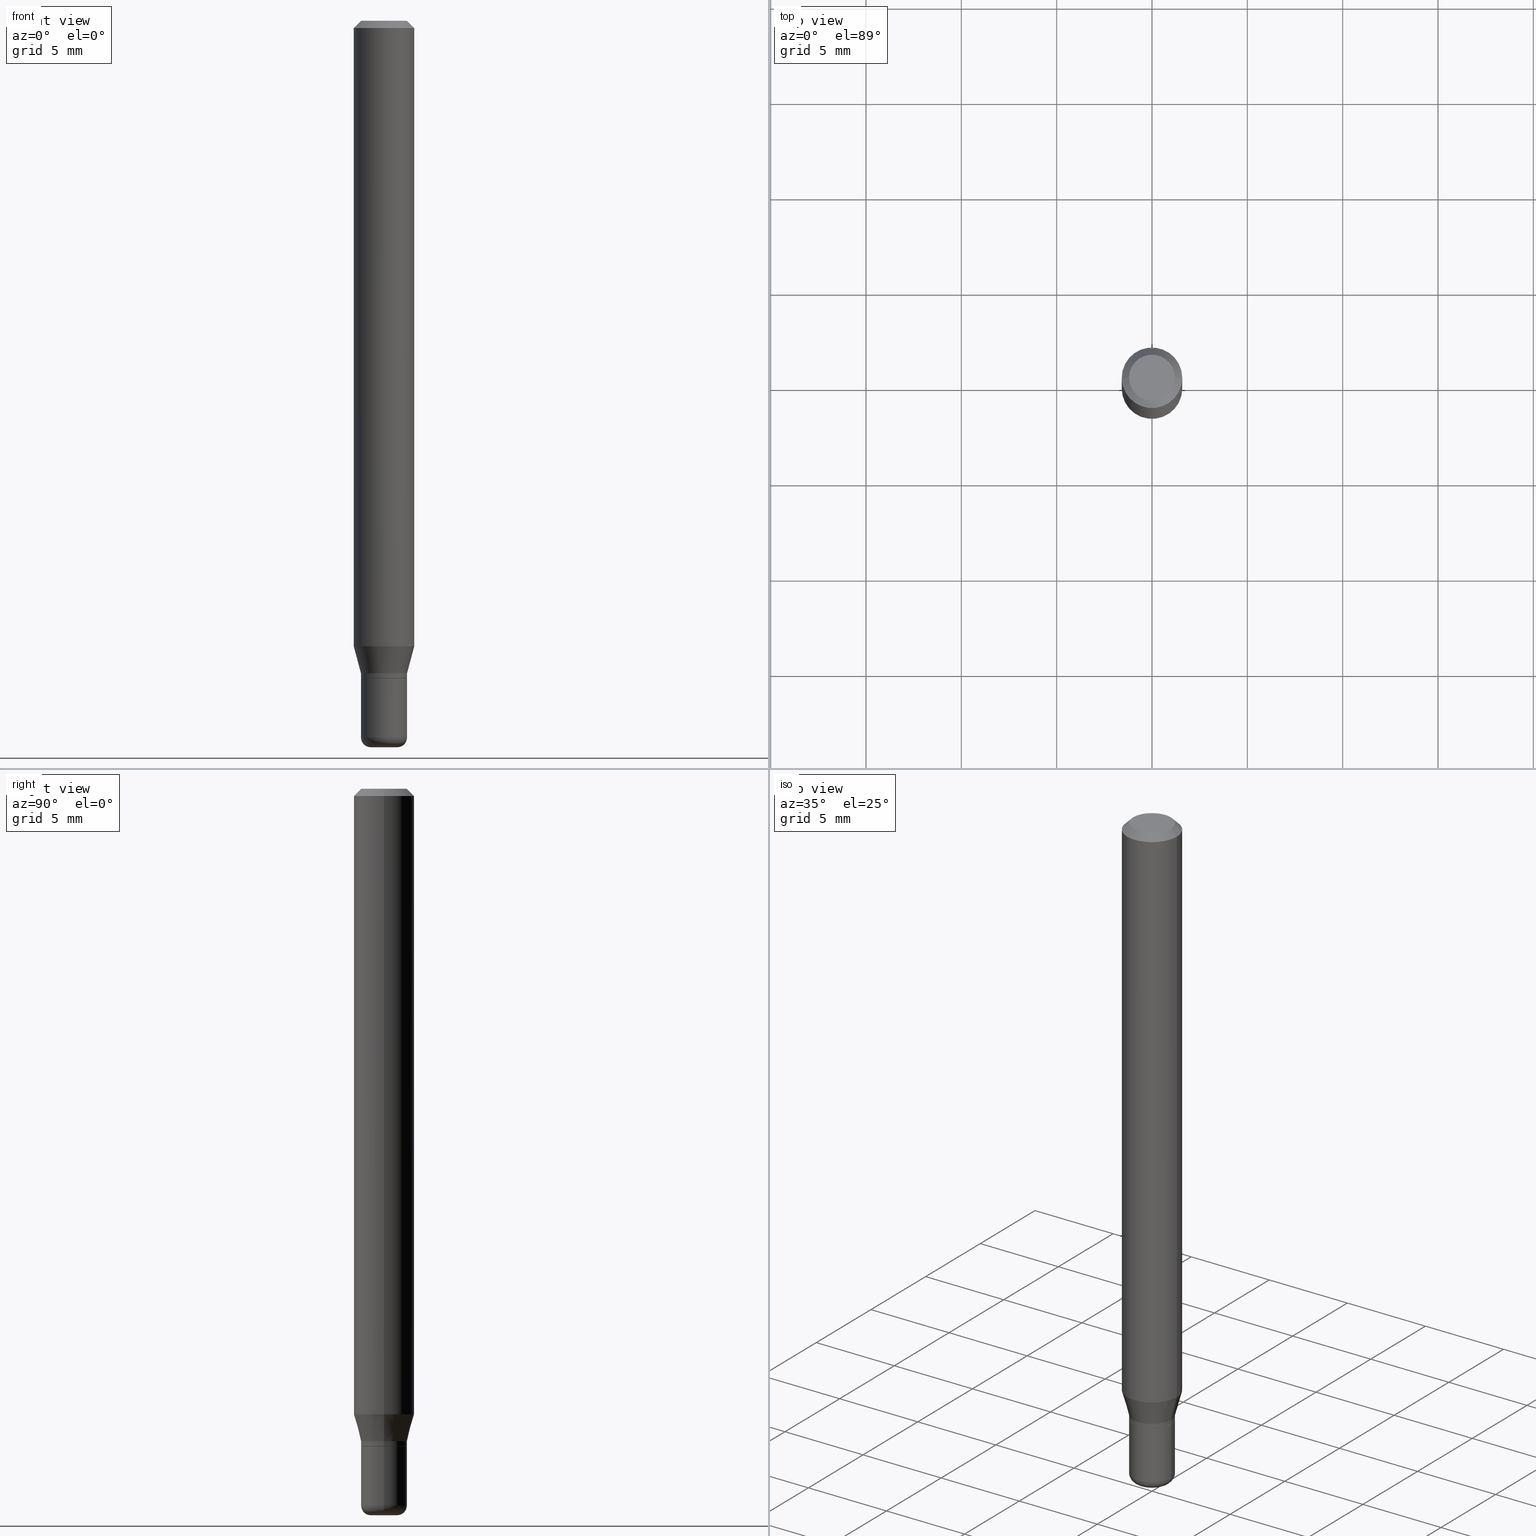
[diagram: canonical four-view strip — front | top / right | iso, engineering-drawing reading convention]
A machine part, canonical four-view strip (front | top / right | iso — engineering-drawing reading convention). The complete STEP part file that produces these views, byte-faithful:
ISO-10303-21;
HEADER;
FILE_DESCRIPTION (( 'STEP AP203' ),
    '1' );
FILE_NAME ('08589.STEP',
    '2024-02-29T19:53:49',
    ( '' ),
    ( '' ),
    'SwSTEP 2.0',
    'SolidWorks 2023',
    '' );
FILE_SCHEMA (( 'CONFIG_CONTROL_DESIGN' ));
ENDSEC;

DATA;
#1 = LINE ( 'NONE', #317, #270 ) ;
#2 = ORIENTED_EDGE ( 'NONE', *, *, #444, .T. ) ;
#3 = APPROVAL ( #509, 'UNSPECIFIED' ) ;
#4 = DIRECTION ( 'NONE',  ( -2.445468806185136597E-29, 3.491481338843145583E-15, 1.000000000000000000 ) ) ;
#5 = VECTOR ( 'NONE', #274, 39.37007874015748143 ) ;
#6 = ORIENTED_EDGE ( 'NONE', *, *, #197, .F. ) ;
#7 = VECTOR ( 'NONE', #117, 39.37007874015748143 ) ;
#8 = DIRECTION ( 'NONE',  ( 1.000000000000000000, -6.982962677686266711E-15, 4.876176775795935793E-29 ) ) ;
#9 = ORIENTED_EDGE ( 'NONE', *, *, #35, .T. ) ;
#10 = EDGE_CURVE ( 'NONE', #481, #125, #463, .T. ) ;
#11 = DIRECTION ( 'NONE',  ( 2.445468806185136597E-29, -3.491481338843145583E-15, -1.000000000000000000 ) ) ;
#12 = PLANE ( 'NONE',  #63 ) ;
#13 =( NAMED_UNIT ( * ) PLANE_ANGLE_UNIT ( ) SI_UNIT ( $, .RADIAN. ) );
#14 = CC_DESIGN_PERSON_AND_ORGANIZATION_ASSIGNMENT ( #37, #187, ( #78 ) ) ;
#15 = FACE_OUTER_BOUND ( 'NONE', #286, .T. ) ;
#16 = ORIENTED_EDGE ( 'NONE', *, *, #379, .F. ) ;
#17 = CLOSED_SHELL ( 'NONE', ( #110, #352, #105, #396, #86, #448 ) ) ;
#18 = VERTEX_POINT ( 'NONE', #220 ) ;
#19 = VECTOR ( 'NONE', #196, 39.37007874015748143 ) ;
#20 = CARTESIAN_POINT ( 'NONE',  ( 3.668203209277632395E-31, -5.237222008264614861E-17, -0.01499999999999970281 ) ) ;
#21 = CARTESIAN_POINT ( 'NONE',  ( -0.04750000000000000749, 3.578768372314221353E-16, 2.731847993664239060E-16 ) ) ;
#22 = EDGE_CURVE ( 'NONE', #45, #445, #341, .T. ) ;
#23 = EDGE_CURVE ( 'NONE', #67, #298, #418, .T. ) ;
#24 = PERSON_AND_ORGANIZATION ( #31, #309 ) ;
#25 = ORIENTED_EDGE ( 'NONE', *, *, #23, .F. ) ;
#26 = AXIS2_PLACEMENT_3D ( 'NONE', #231, #393, #430 ) ;
#27 = AXIS2_PLACEMENT_3D ( 'NONE', #355, #517, #126 ) ;
#28 = CARTESIAN_POINT ( 'NONE',  ( -0.06250000000000000000, -1.836754559110020621E-15, -0.01499999999999970281 ) ) ;
#29 = DATE_AND_TIME ( #118, #465 ) ;
#30 = AXIS2_PLACEMENT_3D ( 'NONE', #114, #510, #473 ) ;
#31 = PERSON ( 'UNSPECIFIED', 'UNSPECIFIED', 'UNSPECIFIED', ('UNSPECIFIED'), ('UNSPECIFIED'), ('UNSPECIFIED') ) ;
#32 = CIRCLE ( 'NONE', #134, 0.06250000000000000000 ) ;
#33 = COORDINATED_UNIVERSAL_TIME_OFFSET ( 5, 0, .BEHIND. ) ;
#34 = ORIENTED_EDGE ( 'NONE', *, *, #253, .F. ) ;
#35 = EDGE_CURVE ( 'NONE', #481, #65, #482, .T. ) ;
#36 = ORIENTED_EDGE ( 'NONE', *, *, #10, .F. ) ;
#37 = PERSON_AND_ORGANIZATION ( #31, #309 ) ;
#38 = DIRECTION ( 'NONE',  ( -2.445468806185136597E-29, 3.491481338843145583E-15, 1.000000000000000000 ) ) ;
#39 = DIRECTION ( 'NONE',  ( -2.445468806185136597E-29, 3.491481338843145583E-15, 1.000000000000000000 ) ) ;
#40 = DIRECTION ( 'NONE',  ( 1.000000000000000000, -6.982962677686262766E-15, 0.000000000000000000 ) ) ;
#41 = CIRCLE ( 'NONE', #496, 0.04750000000000000749 ) ;
#42 = DIRECTION ( 'NONE',  ( -2.445468806185136597E-29, 3.491481338843145583E-15, 1.000000000000000000 ) ) ;
#43 = CARTESIAN_POINT ( 'NONE',  ( 3.158370008839356445E-29, -4.509315317837521367E-15, -1.291519237886467275 ) ) ;
#44 = DIRECTION ( 'NONE',  ( -2.445468806185136877E-29, 3.491481338843145188E-15, 1.000000000000000000 ) ) ;
#45 = VERTEX_POINT ( 'NONE', #450 ) ;
#46 = CYLINDRICAL_SURFACE ( 'NONE', #435, 0.04750000000000001443 ) ;
#47 = CARTESIAN_POINT ( 'NONE',  ( 0.04700000000000000705, -5.067885163330825231E-15, -1.357500000000000151 ) ) ;
#48 = ORIENTED_EDGE ( 'NONE', *, *, #377, .T. ) ;
#49 = AXIS2_PLACEMENT_3D ( 'NONE', #20, #11, #322 ) ;
#50 = FACE_OUTER_BOUND ( 'NONE', #237, .T. ) ;
#51 = DIRECTION ( 'NONE',  ( -2.445468806185136597E-29, 3.491481338843145583E-15, 1.000000000000000000 ) ) ;
#52 = ORIENTED_EDGE ( 'NONE', *, *, #367, .F. ) ;
#53 = DIRECTION ( 'NONE',  ( -2.445468806185136877E-29, 3.491481338843145188E-15, 1.000000000000000000 ) ) ;
#54 = CARTESIAN_POINT ( 'NONE',  ( 0.04750000000000000749, -4.035134999187568762E-16, 2.731847993664288856E-16 ) ) ;
#55 = DIRECTION ( 'NONE',  ( -2.445468806185136597E-29, 3.491481338843145583E-15, 1.000000000000000000 ) ) ;
#56 = DIRECTION ( 'NONE',  ( 1.000000000000000000, 0.000000000000000000, 0.000000000000000000 ) ) ;
#57 = AXIS2_PLACEMENT_3D ( 'NONE', #297, #373, #61 ) ;
#58 = CIRCLE ( 'NONE', #162, 0.06250000000000000000 ) ;
#59 = EDGE_CURVE ( 'NONE', #45, #176, #462, .T. ) ;
#60 = PERSON_AND_ORGANIZATION ( #31, #309 ) ;
#61 = DIRECTION ( 'NONE',  ( 1.000000000000000000, -6.982962677686269866E-15, 0.000000000000000000 ) ) ;
#62 = VERTEX_POINT ( 'NONE', #205 ) ;
#63 = AXIS2_PLACEMENT_3D ( 'NONE', #321, #166, #405 ) ;
#64 = ADVANCED_FACE ( 'NONE', ( #15 ), #411, .T. ) ;
#65 = VERTEX_POINT ( 'NONE', #21 ) ;
#66 = COORDINATED_UNIVERSAL_TIME_OFFSET ( 5, 0, .BEHIND. ) ;
#67 = VERTEX_POINT ( 'NONE', #376 ) ;
#68 = VERTEX_POINT ( 'NONE', #28 ) ;
#69 = VECTOR ( 'NONE', #492, 39.37007874015748143 ) ;
#70 = LOCAL_TIME ( 14, 53, 49.00000000000000000, #183 ) ;
#71 = CARTESIAN_POINT ( 'NONE',  ( 3.319723904396323737E-29, -4.739685917479570727E-15, -1.357500000000000151 ) ) ;
#72 = DIRECTION ( 'NONE',  ( -2.438088387897960049E-29, 3.491481338843145188E-15, 1.000000000000000000 ) ) ;
#73 = DIRECTION ( 'NONE',  ( -2.445468806185136597E-29, 3.491481338843145583E-15, 1.000000000000000000 ) ) ;
#74 = APPROVAL_STATUS ( 'not_yet_approved' ) ;
#75 = DIRECTION ( 'NONE',  ( 1.000000000000000000, -6.982962677686275388E-15, 0.000000000000000000 ) ) ;
#76 = CARTESIAN_POINT ( 'NONE',  ( 3.158370008839356445E-29, -4.509315317837521367E-15, -1.291519237886467275 ) ) ;
#77 = FACE_OUTER_BOUND ( 'NONE', #456, .T. ) ;
#78 = PRODUCT_DEFINITION_FORMATION_WITH_SPECIFIED_SOURCE ( 'ANY', '', #387, .NOT_KNOWN. ) ;
#79 = DIRECTION ( 'NONE',  ( 1.000000000000000000, -6.982962677686266711E-15, 4.876176775795934672E-29 ) ) ;
#80 = DIRECTION ( 'NONE',  ( -2.445468806185136597E-29, 3.491481338843145583E-15, 1.000000000000000000 ) ) ;
#81 = ORIENTED_EDGE ( 'NONE', *, *, #189, .F. ) ;
#82 = CARTESIAN_POINT ( 'NONE',  ( 0.04749999999999999362, -5.071376644669668238E-15, -1.357500000000000151 ) ) ;
#83 = ORIENTED_EDGE ( 'NONE', *, *, #380, .F. ) ;
#84 = CARTESIAN_POINT ( 'NONE',  ( -0.04750000000000000749, -4.400432377324100941E-15, -1.356999999999999984 ) ) ;
#85 = ADVANCED_FACE ( 'NONE', ( #263 ), #104, .T. ) ;
#86 = ADVANCED_FACE ( 'NONE', ( #382 ), #233, .T. ) ;
#87 = DIRECTION ( 'NONE',  ( -2.438088387897960049E-29, 3.491481338843145188E-15, 1.000000000000000000 ) ) ;
#88 = ORIENTED_EDGE ( 'NONE', *, *, #326, .F. ) ;
#89 = APPROVAL_PERSON_ORGANIZATION ( #60, #424, #177 ) ;
#90 = ORIENTED_EDGE ( 'NONE', *, *, #356, .T. ) ;
#91 = DIRECTION ( 'NONE',  ( 7.105427357601001859E-15, 1.000000000000000000, -3.491481338843145583E-15 ) ) ;
#92 = APPLICATION_CONTEXT ( 'configuration controlled 3d designs of mechanical parts and assemblies' ) ;
#93 = PLANE ( 'NONE',  #502 ) ;
#94 = VERTEX_POINT ( 'NONE', #302 ) ;
#95 = DIRECTION ( 'NONE',  ( -1.000000000000000000, 6.982962677686265922E-15, -4.876176775795935793E-29 ) ) ;
#96 = APPLICATION_PROTOCOL_DEFINITION ( 'international standard', 'config_control_design', 1994, #251 ) ;
#97 = ADVANCED_FACE ( 'NONE', ( #421 ), #501, .F. ) ;
#98 = AXIS2_PLACEMENT_3D ( 'NONE', #290, #55, #209 ) ;
#99 = DIRECTION ( 'NONE',  ( -2.445468806185136597E-29, 3.491481338843145583E-15, 1.000000000000000000 ) ) ;
#100 = EDGE_LOOP ( 'NONE', ( #265, #160, #52, #419 ) ) ;
#101 = DIRECTION ( 'NONE',  ( 1.000000000000000000, -6.982962677686266711E-15, 4.852736867747365086E-29 ) ) ;
#102 = VERTEX_POINT ( 'NONE', #175 ) ;
#103 = PRODUCT_DEFINITION ( 'UNKNOWN', '', #78, #476 ) ;
#104 = CYLINDRICAL_SURFACE ( 'NONE', #161, 0.04750000000000001443 ) ;
#105 = ADVANCED_FACE ( 'NONE', ( #294 ), #12, .F. ) ;
#106 = CIRCLE ( 'NONE', #412, 0.04750000000000000749 ) ;
#107 = DIRECTION ( 'NONE',  ( 1.000000000000000000, -6.982962677686258033E-15, 4.883557194083110098E-29 ) ) ;
#108 = ORIENTED_EDGE ( 'NONE', *, *, #59, .T. ) ;
#109 = VERTEX_POINT ( 'NONE', #132 ) ;
#110 = ADVANCED_FACE ( 'NONE', ( #50 ), #512, .T. ) ;
#111 = PERSON_AND_ORGANIZATION ( #31, #309 ) ;
#112 = EDGE_LOOP ( 'NONE', ( #459, #223, #304, #16 ) ) ;
#113 = LINE ( 'NONE', #228, #246 ) ;
#114 = CARTESIAN_POINT ( 'NONE',  ( 3.668203209277632395E-31, -5.237222008264614861E-17, -0.01499999999999970281 ) ) ;
#115 = CARTESIAN_POINT ( 'NONE',  ( 3.295269216334471631E-29, -4.704771104091139078E-15, -1.347500000000000142 ) ) ;
#116 = VERTEX_POINT ( 'NONE', #287 ) ;
#117 = DIRECTION ( 'NONE',  ( -0.2588190451025216277, 5.211531920934551831E-15, 0.9659258262890679791 ) ) ;
#118 = CALENDAR_DATE ( 2024, 29, 2 ) ;
#119 = CYLINDRICAL_SURFACE ( 'NONE', #182, 0.04750000000000000749 ) ;
#120 = CARTESIAN_POINT ( 'NONE',  ( 3.319723904396323737E-29, -4.739685917479570727E-15, -1.357500000000000151 ) ) ;
#121 = CONICAL_SURFACE ( 'NONE', #334, 0.04750000000000002137, 0.2617993877991502960 ) ;
#122 = DIRECTION ( 'NONE',  ( -0.7071067811865479058, 2.468850131082261005E-15, -0.7071067811865471286 ) ) ;
#123 = SECURITY_CLASSIFICATION ( '', '', #214 ) ;
#124 = FACE_OUTER_BOUND ( 'NONE', #416, .T. ) ;
#125 = VERTEX_POINT ( 'NONE', #446 ) ;
#126 = DIRECTION ( 'NONE',  ( 1.000000000000000000, -6.982962677686269866E-15, 0.000000000000000000 ) ) ;
#127 = ORIENTED_EDGE ( 'NONE', *, *, #227, .F. ) ;
#128 = EDGE_CURVE ( 'NONE', #400, #94, #495, .T. ) ;
#129 = CARTESIAN_POINT ( 'NONE',  ( 3.619293833154002365E-29, -5.167392381487854879E-15, -1.479999999999999982 ) ) ;
#130 = EDGE_CURVE ( 'NONE', #366, #298, #408, .T. ) ;
#131 = APPLICATION_PROTOCOL_DEFINITION ( 'international standard', 'config_control_design', 1994, #92 ) ;
#132 = CARTESIAN_POINT ( 'NONE',  ( 0.06250000000000000000, -4.945750485192912248E-15, -1.291519237886467275 ) ) ;
#133 = ORIENTED_EDGE ( 'NONE', *, *, #128, .T. ) ;
#134 = AXIS2_PLACEMENT_3D ( 'NONE', #43, #391, #40 ) ;
#135 = ORIENTED_EDGE ( 'NONE', *, *, #367, .T. ) ;
#136 = ADVANCED_FACE ( 'NONE', ( #390 ), #121, .T. ) ;
#137 = EDGE_CURVE ( 'NONE', #400, #249, #148, .T. ) ;
#138 =( NAMED_UNIT ( * ) SI_UNIT ( $, .STERADIAN. ) SOLID_ANGLE_UNIT ( ) );
#139 = CC_DESIGN_PERSON_AND_ORGANIZATION_ASSIGNMENT ( #111, #225, ( #123 ) ) ;
#140 = CARTESIAN_POINT ( 'NONE',  ( 3.668203209277704895E-29, -5.237222008264718177E-15, -1.500000000000000222 ) ) ;
#141 = CIRCLE ( 'NONE', #425, 0.04750000000000002137 ) ;
#142 = CC_DESIGN_APPROVAL ( #316, ( #78 ) ) ;
#143 = DATE_TIME_ROLE ( 'classification_date' ) ;
#144 = ADVANCED_FACE ( 'NONE', ( #77 ), #245, .T. ) ;
#145 = ORIENTED_EDGE ( 'NONE', *, *, #22, .T. ) ;
#146 = LINE ( 'NONE', #358, #470 ) ;
#147 = EDGE_LOOP ( 'NONE', ( #135, #403, #169, #260 ) ) ;
#148 = CIRCLE ( 'NONE', #193, 0.02750000000000000014 ) ;
#149 = ORIENTED_EDGE ( 'NONE', *, *, #508, .F. ) ;
#150 = CARTESIAN_POINT ( 'NONE',  ( 3.295269216334471631E-29, -4.704771104091139078E-15, -1.347500000000000142 ) ) ;
#151 = APPROVAL_ROLE ( '' ) ;
#152 = AXIS2_PLACEMENT_3D ( 'NONE', #458, #464, #107 ) ;
#153 = DIRECTION ( 'NONE',  ( 1.000000000000000000, -6.982962677686269866E-15, 0.000000000000000000 ) ) ;
#154 = AXIS2_PLACEMENT_3D ( 'NONE', #323, #404, #364 ) ;
#155 = DIRECTION ( 'NONE',  ( -2.445468806185136597E-29, 3.491481338843145583E-15, 1.000000000000000000 ) ) ;
#156 = ADVANCED_FACE ( 'NONE', ( #188 ), #254, .T. ) ;
#157 = DIRECTION ( 'NONE',  ( 1.000000000000000000, -6.982962677686258033E-15, 0.000000000000000000 ) ) ;
#158 = FACE_OUTER_BOUND ( 'NONE', #259, .T. ) ;
#159 = DIRECTION ( 'NONE',  ( 1.000000000000000000, -6.982962677686262766E-15, 0.000000000000000000 ) ) ;
#160 = ORIENTED_EDGE ( 'NONE', *, *, #384, .T. ) ;
#161 = AXIS2_PLACEMENT_3D ( 'NONE', #338, #460, #340 ) ;
#162 = AXIS2_PLACEMENT_3D ( 'NONE', #282, #480, #357 ) ;
#163 = DIRECTION ( 'NONE',  ( 1.000000000000000000, -6.982962677686265922E-15, 4.876176775795935793E-29 ) ) ;
#164 = EDGE_CURVE ( 'NONE', #249, #366, #280, .T. ) ;
#165 = ORIENTED_EDGE ( 'NONE', *, *, #164, .F. ) ;
#166 = DIRECTION ( 'NONE',  ( 2.438088387897960049E-29, -3.491481338843145188E-15, -1.000000000000000000 ) ) ;
#167 = DIRECTION ( 'NONE',  ( 2.438088387897960049E-29, -3.491481338843145188E-15, -1.000000000000000000 ) ) ;
#168 = CARTESIAN_POINT ( 'NONE',  ( -0.06250000000000000000, 4.440892098500626162E-16, -3.074334431409316114E-30 ) ) ;
#169 = ORIENTED_EDGE ( 'NONE', *, *, #487, .F. ) ;
#170 = AXIS2_PLACEMENT_3D ( 'NONE', #248, #489, #101 ) ;
#171 = DIRECTION ( 'NONE',  ( 1.000000000000000000, -6.982962677686265922E-15, 4.876176775795935793E-29 ) ) ;
#172 =( GEOMETRIC_REPRESENTATION_CONTEXT ( 3 ) GLOBAL_UNCERTAINTY_ASSIGNED_CONTEXT ( ( #513 ) ) GLOBAL_UNIT_ASSIGNED_CONTEXT ( ( #204, #13, #138 ) ) REPRESENTATION_CONTEXT ( 'NONE', 'WORKASPACE' ) );
#173 = EDGE_LOOP ( 'NONE', ( #467, #337 ) ) ;
#174 = ADVANCED_BREP_SHAPE_REPRESENTATION ( '08589', ( #494, #327, #303 ), #172 ) ;
#175 = CARTESIAN_POINT ( 'NONE',  ( 0.04750000000000000749, -5.069630904000246734E-15, -1.356999999999999984 ) ) ;
#176 = VERTEX_POINT ( 'NONE', #349 ) ;
#177 = APPROVAL_ROLE ( '' ) ;
#178 = APPROVAL_DATE_TIME ( #423, #424 ) ;
#179 = VECTOR ( 'NONE', #461, 39.37007874015748143 ) ;
#180 = CIRCLE ( 'NONE', #154, 0.04750000000000002137 ) ;
#181 = ORIENTED_EDGE ( 'NONE', *, *, #363, .F. ) ;
#182 = AXIS2_PLACEMENT_3D ( 'NONE', #350, #155, #79 ) ;
#183 = COORDINATED_UNIVERSAL_TIME_OFFSET ( 5, 0, .BEHIND. ) ;
#184 = EDGE_LOOP ( 'NONE', ( #149, #505 ) ) ;
#185 = PERSON_AND_ORGANIZATION_ROLE ( 'creator' ) ;
#186 = ORIENTED_EDGE ( 'NONE', *, *, #415, .F. ) ;
#187 = PERSON_AND_ORGANIZATION_ROLE ( 'design_supplier' ) ;
#188 = FACE_OUTER_BOUND ( 'NONE', #374, .T. ) ;
#189 = EDGE_CURVE ( 'NONE', #102, #445, #295, .T. ) ;
#190 = CARTESIAN_POINT ( 'NONE',  ( 0.06250000000000000000, -4.364351673553916694E-16, 3.047610484872459871E-30 ) ) ;
#191 = CARTESIAN_POINT ( 'NONE',  ( 3.295269216334471631E-29, -4.704771104091139078E-15, -1.347500000000000142 ) ) ;
#192 = ORIENTED_EDGE ( 'NONE', *, *, #472, .T. ) ;
#193 = AXIS2_PLACEMENT_3D ( 'NONE', #311, #278, #433 ) ;
#194 = AXIS2_PLACEMENT_3D ( 'NONE', #477, #72, #163 ) ;
#195 = DIRECTION ( 'NONE',  ( 1.000000000000000000, -6.982962677686260400E-15, 0.000000000000000000 ) ) ;
#196 = DIRECTION ( 'NONE',  ( -2.445468806185136877E-29, 3.491481338843145188E-15, 1.000000000000000000 ) ) ;
#197 = EDGE_CURVE ( 'NONE', #116, #62, #141, .T. ) ;
#198 = DIRECTION ( 'NONE',  ( 1.000000000000000000, -6.982962677686258033E-15, 0.000000000000000000 ) ) ;
#199 = EDGE_LOOP ( 'NONE', ( #491, #108, #2, #186 ) ) ;
#200 = CIRCLE ( 'NONE', #335, 0.04749999999999999362 ) ;
#201 = CALENDAR_DATE ( 2024, 29, 2 ) ;
#202 = APPROVAL_PERSON_ORGANIZATION ( #389, #316, #151 ) ;
#203 = CARTESIAN_POINT ( 'NONE',  ( 3.316907271900976589E-16, 0.04750000000000000749, -2.925296391183627249E-17 ) ) ;
#204 =( CONVERSION_BASED_UNIT ( 'INCH', #291 ) LENGTH_UNIT ( ) NAMED_UNIT ( #257 ) );
#205 = CARTESIAN_POINT ( 'NONE',  ( -0.04750000000000002137, -4.216244706296274379E-15, -1.347500000000000142 ) ) ;
#206 = DIRECTION ( 'NONE',  ( -2.445468806185136597E-29, 3.491481338843145583E-15, 1.000000000000000000 ) ) ;
#207 = DIRECTION ( 'NONE',  ( 1.000000000000000000, -6.982962677686261977E-15, 0.000000000000000000 ) ) ;
#208 = EDGE_LOOP ( 'NONE', ( #483, #48, #289, #498 ) ) ;
#209 = DIRECTION ( 'NONE',  ( 1.000000000000000000, -6.982962677686266711E-15, 4.876176775795935793E-29 ) ) ;
#210 = MECHANICAL_CONTEXT ( 'NONE', #251, 'mechanical' ) ;
#211 = AXIS2_PLACEMENT_3D ( 'NONE', #281, #507, #431 ) ;
#212 = APPROVAL_STATUS ( 'not_yet_approved' ) ;
#213 = EDGE_CURVE ( 'NONE', #109, #125, #511, .T. ) ;
#214 = SECURITY_CLASSIFICATION_LEVEL ( 'unclassified' ) ;
#215 = ORIENTED_EDGE ( 'NONE', *, *, #380, .T. ) ;
#216 = AXIS2_PLACEMENT_3D ( 'NONE', #120, #80, #365 ) ;
#217 = EDGE_LOOP ( 'NONE', ( #192, #283 ) ) ;
#218 = LOCAL_TIME ( 14, 53, 49.00000000000000000, #414 ) ;
#219 = CARTESIAN_POINT ( 'NONE',  ( 0.02750000000000000014, -5.429253481901091458E-15, -1.500000000000000222 ) ) ;
#220 = CARTESIAN_POINT ( 'NONE',  ( -0.06250000000000000000, -4.065226107987458751E-15, -1.291519237886467275 ) ) ;
#221 = DATE_TIME_ROLE ( 'creation_date' ) ;
#222 = AXIS2_PLACEMENT_3D ( 'NONE', #191, #272, #315 ) ;
#223 = ORIENTED_EDGE ( 'NONE', *, *, #137, .T. ) ;
#224 = CC_DESIGN_PERSON_AND_ORGANIZATION_ASSIGNMENT ( #255, #413, ( #387 ) ) ;
#225 = PERSON_AND_ORGANIZATION_ROLE ( 'classification_officer' ) ;
#226 = ADVANCED_FACE ( 'NONE', ( #124 ), #46, .T. ) ;
#227 = EDGE_CURVE ( 'NONE', #366, #94, #180, .T. ) ;
#228 = CARTESIAN_POINT ( 'NONE',  ( -0.04750000000000000749, 3.375077994860476415E-16, -2.336494167871080260E-30 ) ) ;
#229 = DIRECTION ( 'NONE',  ( 1.000000000000000000, -6.982962677686266711E-15, 4.876176775795935793E-29 ) ) ;
#230 = PERSON_AND_ORGANIZATION ( #31, #309 ) ;
#231 = CARTESIAN_POINT ( 'NONE',  ( 3.318501169993230375E-29, -4.737940176810148435E-15, -1.356999999999999984 ) ) ;
#232 = CARTESIAN_POINT ( 'NONE',  ( 3.619293833154002365E-29, -5.167392381487854879E-15, -1.479999999999999982 ) ) ;
#233 = TOROIDAL_SURFACE ( 'NONE', #152, 0.02749999999999999667, 0.02000000000000002470 ) ;
#234 = CONICAL_SURFACE ( 'NONE', #369, 0.04750000000000002137, 0.2617993877991502960 ) ;
#235 = CARTESIAN_POINT ( 'NONE',  ( -0.02750000000000000014, -4.935853668966249905E-15, -1.500000000000000222 ) ) ;
#236 = ADVANCED_FACE ( 'NONE', ( #439 ), #388, .T. ) ;
#237 = EDGE_LOOP ( 'NONE', ( #301, #133, #127, #165 ) ) ;
#238 = PLANE ( 'NONE',  #194 ) ;
#239 = ORIENTED_EDGE ( 'NONE', *, *, #35, .F. ) ;
#240 = CC_DESIGN_DATE_AND_TIME_ASSIGNMENT ( #29, #221, ( #103 ) ) ;
#241 = ORIENTED_EDGE ( 'NONE', *, *, #356, .F. ) ;
#242 = LINE ( 'NONE', #47, #319 ) ;
#243 = ORIENTED_EDGE ( 'NONE', *, *, #130, .T. ) ;
#244 = DIRECTION ( 'NONE',  ( -2.445468806185136597E-29, 3.491481338843145583E-15, 1.000000000000000000 ) ) ;
#245 = CONICAL_SURFACE ( 'NONE', #500, 0.04700000000000000705, 0.7853981633972775267 ) ;
#246 = VECTOR ( 'NONE', #44, 39.37007874015748143 ) ;
#247 = DIRECTION ( 'NONE',  ( -2.445468806185136597E-29, 3.491481338843145583E-15, 1.000000000000000000 ) ) ;
#248 = CARTESIAN_POINT ( 'NONE',  ( -6.680649051745406845E-45, 9.538196290434862081E-31, 2.731847993664263218E-16 ) ) ;
#249 = VERTEX_POINT ( 'NONE', #219 ) ;
#250 = DIRECTION ( 'NONE',  ( -1.000000000000000000, 7.105427357601014480E-15, 0.000000000000000000 ) ) ;
#251 = APPLICATION_CONTEXT ( 'configuration controlled 3d designs of mechanical parts and assemblies' ) ;
#252 = CARTESIAN_POINT ( 'NONE',  ( 3.319723904396323737E-29, -4.739685917479570727E-15, -1.357500000000000151 ) ) ;
#253 = EDGE_CURVE ( 'NONE', #102, #116, #146, .T. ) ;
#254 = CONICAL_SURFACE ( 'NONE', #30, 0.06250000000000000000, 0.7853981633974488341 ) ;
#255 = PERSON_AND_ORGANIZATION ( #31, #309 ) ;
#256 = AXIS2_PLACEMENT_3D ( 'NONE', #273, #73, #229 ) ;
#257 = DIMENSIONAL_EXPONENTS ( 1.000000000000000000, 0.000000000000000000, 0.000000000000000000, 0.000000000000000000, 0.000000000000000000, 0.000000000000000000, 0.000000000000000000 ) ;
#258 = LINE ( 'NONE', #168, #484 ) ;
#259 = EDGE_LOOP ( 'NONE', ( #181, #324, #243, #25 ) ) ;
#260 = ORIENTED_EDGE ( 'NONE', *, *, #213, .F. ) ;
#261 = CONICAL_SURFACE ( 'NONE', #296, 0.04700000000000000705, 0.7853981633972775267 ) ;
#262 = CC_DESIGN_APPROVAL ( #3, ( #123 ) ) ;
#263 = FACE_OUTER_BOUND ( 'NONE', #438, .T. ) ;
#264 = ORIENTED_EDGE ( 'NONE', *, *, #253, .T. ) ;
#265 = ORIENTED_EDGE ( 'NONE', *, *, #197, .T. ) ;
#266 = CALENDAR_DATE ( 2024, 29, 2 ) ;
#267 = ORIENTED_EDGE ( 'NONE', *, *, #227, .T. ) ;
#268 = CC_DESIGN_PERSON_AND_ORGANIZATION_ASSIGNMENT ( #230, #185, ( #103 ) ) ;
#269 = VECTOR ( 'NONE', #312, 39.37007874015748143 ) ;
#270 = VECTOR ( 'NONE', #122, 39.37007874015748143 ) ;
#271 = CALENDAR_DATE ( 2024, 29, 2 ) ;
#272 = DIRECTION ( 'NONE',  ( -2.445468806185136597E-29, 3.491481338843145583E-15, 1.000000000000000000 ) ) ;
#273 = CARTESIAN_POINT ( 'NONE',  ( 0.000000000000000000, 0.000000000000000000, 0.000000000000000000 ) ) ;
#274 = DIRECTION ( 'NONE',  ( -0.7071067811864267805, 7.493145998869918709E-15, 0.7071067811866682540 ) ) ;
#275 = CARTESIAN_POINT ( 'NONE',  ( 0.02749999999999999667, -5.359423855124228160E-15, -1.479999999999999982 ) ) ;
#276 = DIRECTION ( 'NONE',  ( 1.000000000000000000, -6.982962677686258033E-15, 0.000000000000000000 ) ) ;
#277 = CYLINDRICAL_SURFACE ( 'NONE', #211, 0.04750000000000000749 ) ;
#278 = DIRECTION ( 'NONE',  ( -2.445468806185136597E-29, 3.491481338843145583E-15, 1.000000000000000000 ) ) ;
#279 = LINE ( 'NONE', #514, #19 ) ;
#280 = CIRCLE ( 'NONE', #452, 0.02000000000000002470 ) ;
#281 = CARTESIAN_POINT ( 'NONE',  ( 0.000000000000000000, 0.000000000000000000, 0.000000000000000000 ) ) ;
#282 = CARTESIAN_POINT ( 'NONE',  ( 3.668203209277632395E-31, -5.237222008264614861E-17, -0.01499999999999970281 ) ) ;
#283 = ORIENTED_EDGE ( 'NONE', *, *, #23, .T. ) ;
#284 = CARTESIAN_POINT ( 'NONE',  ( 0.04750000000000000749, -3.316907271900977082E-16, 2.316183968503069432E-30 ) ) ;
#285 = CARTESIAN_POINT ( 'NONE',  ( 3.582686580359766038E-29, -5.359686688179453325E-15, -1.500000000000000222 ) ) ;
#286 = EDGE_LOOP ( 'NONE', ( #497, #370, #441, #83 ) ) ;
#287 = CARTESIAN_POINT ( 'NONE',  ( 0.04750000000000002137, -5.036461831281236589E-15, -1.347500000000000142 ) ) ;
#288 = LINE ( 'NONE', #455, #69 ) ;
#289 = ORIENTED_EDGE ( 'NONE', *, *, #499, .T. ) ;
#290 = CARTESIAN_POINT ( 'NONE',  ( 0.000000000000000000, 0.000000000000000000, 0.000000000000000000 ) ) ;
#291 = LENGTH_MEASURE_WITH_UNIT ( LENGTH_MEASURE( 0.02539999999999999897 ), #331 );
#292 = ADVANCED_FACE ( 'NONE', ( #437 ), #234, .T. ) ;
#293 = ADVANCED_FACE ( 'NONE', ( #428 ), #238, .F. ) ;
#294 = FACE_OUTER_BOUND ( 'NONE', #217, .T. ) ;
#295 = CIRCLE ( 'NONE', #26, 0.04750000000000000749 ) ;
#296 = AXIS2_PLACEMENT_3D ( 'NONE', #252, #247, #406 ) ;
#297 = CARTESIAN_POINT ( 'NONE',  ( 3.319723904396323737E-29, -4.739685917479570727E-15, -1.357500000000000151 ) ) ;
#298 = VERTEX_POINT ( 'NONE', #82 ) ;
#299 = SHAPE_DEFINITION_REPRESENTATION ( #503, #174 ) ;
#300 = ORIENTED_EDGE ( 'NONE', *, *, #422, .F. ) ;
#301 = ORIENTED_EDGE ( 'NONE', *, *, #508, .T. ) ;
#302 = CARTESIAN_POINT ( 'NONE',  ( -0.04750000000000002137, -4.616031349997665704E-15, -1.479999999999999982 ) ) ;
#303 = AXIS2_PLACEMENT_3D ( 'NONE', #410, #449, #56 ) ;
#304 = ORIENTED_EDGE ( 'NONE', *, *, #164, .T. ) ;
#305 = ORIENTED_EDGE ( 'NONE', *, *, #326, .T. ) ;
#306 = CC_DESIGN_DATE_AND_TIME_ASSIGNMENT ( #310, #143, ( #123 ) ) ;
#307 = EDGE_CURVE ( 'NONE', #18, #109, #453, .T. ) ;
#308 = DIRECTION ( 'NONE',  ( -2.445468806185136597E-29, 3.491481338843145583E-15, 1.000000000000000000 ) ) ;
#309 = ORGANIZATION ( 'UNSPECIFIED', 'UNSPECIFIED', '' ) ;
#310 = DATE_AND_TIME ( #271, #436 ) ;
#311 = CARTESIAN_POINT ( 'NONE',  ( 3.668203209277704895E-29, -5.237222008264718177E-15, -1.500000000000000222 ) ) ;
#312 = DIRECTION ( 'NONE',  ( -2.445468806185136877E-29, 3.491481338843145188E-15, 1.000000000000000000 ) ) ;
#313 = LINE ( 'NONE', #474, #7 ) ;
#314 = DIRECTION ( 'NONE',  ( -2.445468806185136597E-29, 3.491481338843145583E-15, 1.000000000000000000 ) ) ;
#315 = DIRECTION ( 'NONE',  ( 1.000000000000000000, -6.982962677686258033E-15, 0.000000000000000000 ) ) ;
#316 = APPROVAL ( #74, 'UNSPECIFIED' ) ;
#317 = CARTESIAN_POINT ( 'NONE',  ( -0.06250000000000000000, 3.840629472727455270E-16, -0.01499999999999970281 ) ) ;
#318 = ORIENTED_EDGE ( 'NONE', *, *, #130, .F. ) ;
#319 = VECTOR ( 'NONE', #440, 39.37007874015748143 ) ;
#320 = DIRECTION ( 'NONE',  ( -2.445468806185136597E-29, 3.491481338843145583E-15, 1.000000000000000000 ) ) ;
#321 = CARTESIAN_POINT ( 'NONE',  ( 3.316907271901307910E-16, 0.04749999999999526129, -1.357500000000000373 ) ) ;
#322 = DIRECTION ( 'NONE',  ( -1.000000000000000000, 6.982962677686266711E-15, 0.000000000000000000 ) ) ;
#323 = CARTESIAN_POINT ( 'NONE',  ( 3.619293833154002365E-29, -5.167392381487854879E-15, -1.479999999999999982 ) ) ;
#324 = ORIENTED_EDGE ( 'NONE', *, *, #379, .T. ) ;
#325 = DIRECTION ( 'NONE',  ( 1.000000000000000000, -6.982962677686258033E-15, 4.883557194083110098E-29 ) ) ;
#326 = EDGE_CURVE ( 'NONE', #445, #62, #279, .T. ) ;
#327 = MANIFOLD_SOLID_BREP ( 'Body-Move/Copy2[2]', #395 ) ;
#328 = ORIENTED_EDGE ( 'NONE', *, *, #10, .T. ) ;
#329 = AXIS2_PLACEMENT_3D ( 'NONE', #76, #348, #159 ) ;
#330 = CARTESIAN_POINT ( 'NONE',  ( 3.668203209277632395E-31, -5.237222008264614861E-17, -0.01499999999999970281 ) ) ;
#331 =( LENGTH_UNIT ( ) NAMED_UNIT ( * ) SI_UNIT ( $, .METRE. ) );
#332 = ORIENTED_EDGE ( 'NONE', *, *, #363, .T. ) ;
#333 = DIRECTION ( 'NONE',  ( 1.000000000000000000, -6.982962677686279332E-15, 0.000000000000000000 ) ) ;
#334 = AXIS2_PLACEMENT_3D ( 'NONE', #475, #314, #157 ) ;
#335 = AXIS2_PLACEMENT_3D ( 'NONE', #451, #99, #207 ) ;
#336 = ORIENTED_EDGE ( 'NONE', *, *, #444, .F. ) ;
#337 = ORIENTED_EDGE ( 'NONE', *, *, #59, .F. ) ;
#338 = CARTESIAN_POINT ( 'NONE',  ( 0.000000000000000000, 0.000000000000000000, 0.000000000000000000 ) ) ;
#339 = PRODUCT_RELATED_PRODUCT_CATEGORY ( 'detail', '', ( #387 ) ) ;
#340 = DIRECTION ( 'NONE',  ( 1.000000000000000000, -6.982962677686266711E-15, 4.876176775795935793E-29 ) ) ;
#341 = LINE ( 'NONE', #432, #5 ) ;
#342 = ORIENTED_EDGE ( 'NONE', *, *, #422, .T. ) ;
#343 = AXIS2_PLACEMENT_3D ( 'NONE', #442, #91, #250 ) ;
#344 = CIRCLE ( 'NONE', #222, 0.04750000000000002137 ) ;
#345 = COORDINATED_UNIVERSAL_TIME_OFFSET ( 5, 0, .BEHIND. ) ;
#346 = ORIENTED_EDGE ( 'NONE', *, *, #417, .T. ) ;
#347 = PERSON_AND_ORGANIZATION_ROLE ( 'creator' ) ;
#348 = DIRECTION ( 'NONE',  ( -2.445468806185136597E-29, 3.491481338843145583E-15, 1.000000000000000000 ) ) ;
#349 = CARTESIAN_POINT ( 'NONE',  ( 0.04700000000000000705, -5.067885163330825231E-15, -1.357500000000000151 ) ) ;
#350 = CARTESIAN_POINT ( 'NONE',  ( 0.000000000000000000, 0.000000000000000000, 0.000000000000000000 ) ) ;
#351 = AXIS2_PLACEMENT_3D ( 'NONE', #129, #206, #325 ) ;
#352 = ADVANCED_FACE ( 'NONE', ( #402 ), #119, .T. ) ;
#353 = CIRCLE ( 'NONE', #27, 0.04700000000000000705 ) ;
#354 = DATE_AND_TIME ( #516, #454 ) ;
#355 = CARTESIAN_POINT ( 'NONE',  ( 3.319723904396323737E-29, -4.739685917479570727E-15, -1.357500000000000151 ) ) ;
#356 = EDGE_CURVE ( 'NONE', #65, #481, #106, .T. ) ;
#357 = DIRECTION ( 'NONE',  ( 1.000000000000000000, -6.982962677686266711E-15, 0.000000000000000000 ) ) ;
#358 = CARTESIAN_POINT ( 'NONE',  ( 0.04750000000000001443, -3.316907271900977575E-16, 2.316183968503070132E-30 ) ) ;
#359 = ORIENTED_EDGE ( 'NONE', *, *, #189, .T. ) ;
#360 = CARTESIAN_POINT ( 'NONE',  ( 0.000000000000000000, 0.000000000000000000, 0.000000000000000000 ) ) ;
#361 = AXIS2_PLACEMENT_3D ( 'NONE', #140, #51, #333 ) ;
#362 = FACE_OUTER_BOUND ( 'NONE', #199, .T. ) ;
#363 = EDGE_CURVE ( 'NONE', #94, #67, #113, .T. ) ;
#364 = DIRECTION ( 'NONE',  ( 1.000000000000000000, -6.982962677686258033E-15, 0.000000000000000000 ) ) ;
#365 = DIRECTION ( 'NONE',  ( 1.000000000000000000, -6.982962677686261977E-15, 0.000000000000000000 ) ) ;
#366 = VERTEX_POINT ( 'NONE', #399 ) ;
#367 = EDGE_CURVE ( 'NONE', #109, #18, #32, .T. ) ;
#368 = VECTOR ( 'NONE', #53, 39.37007874015748143 ) ;
#369 = AXIS2_PLACEMENT_3D ( 'NONE', #150, #308, #469 ) ;
#370 = ORIENTED_EDGE ( 'NONE', *, *, #307, .T. ) ;
#371 = DIRECTION ( 'NONE',  ( -2.445468806185136877E-29, 3.491481338843145188E-15, 1.000000000000000000 ) ) ;
#372 = APPROVAL_ROLE ( '' ) ;
#373 = DIRECTION ( 'NONE',  ( -2.445468806185136597E-29, 3.491481338843145583E-15, 1.000000000000000000 ) ) ;
#374 = EDGE_LOOP ( 'NONE', ( #36, #241, #342, #215 ) ) ;
#375 = EDGE_LOOP ( 'NONE', ( #267, #332, #381, #318 ) ) ;
#376 = CARTESIAN_POINT ( 'NONE',  ( -0.04749999999999999362, -4.616031349997665704E-15, -1.357500000000000151 ) ) ;
#377 = EDGE_CURVE ( 'NONE', #62, #116, #344, .T. ) ;
#378 = CIRCLE ( 'NONE', #386, 0.04750000000000002137 ) ;
#379 = EDGE_CURVE ( 'NONE', #94, #366, #378, .T. ) ;
#380 = EDGE_CURVE ( 'NONE', #68, #125, #58, .T. ) ;
#381 = ORIENTED_EDGE ( 'NONE', *, *, #472, .F. ) ;
#382 = FACE_OUTER_BOUND ( 'NONE', #112, .T. ) ;
#383 = PERSON_AND_ORGANIZATION ( #31, #309 ) ;
#384 = EDGE_CURVE ( 'NONE', #62, #18, #313, .T. ) ;
#385 = CARTESIAN_POINT ( 'NONE',  ( 0.06250000000000000000, -4.811533449433669144E-16, -0.01499999999999970281 ) ) ;
#386 = AXIS2_PLACEMENT_3D ( 'NONE', #232, #320, #198 ) ;
#387 = PRODUCT ( '08589', '08589', '', ( #210 ) ) ;
#388 = CYLINDRICAL_SURFACE ( 'NONE', #256, 0.06250000000000000000 ) ;
#389 = PERSON_AND_ORGANIZATION ( #31, #309 ) ;
#390 = FACE_OUTER_BOUND ( 'NONE', #100, .T. ) ;
#391 = DIRECTION ( 'NONE',  ( -2.445468806185136597E-29, 3.491481338843145583E-15, 1.000000000000000000 ) ) ;
#392 = APPROVAL_DATE_TIME ( #354, #316 ) ;
#393 = DIRECTION ( 'NONE',  ( -2.445468806185136597E-29, 3.491481338843145583E-15, 1.000000000000000000 ) ) ;
#394 = CARTESIAN_POINT ( 'NONE',  ( 3.318501169993230375E-29, -4.737940176810148435E-15, -1.356999999999999984 ) ) ;
#395 = CLOSED_SHELL ( 'NONE', ( #85, #144, #457, #236, #136, #292, #64, #156, #97, #293, #493, #226 ) ) ;
#396 = ADVANCED_FACE ( 'NONE', ( #158 ), #277, .T. ) ;
#397 = DIRECTION ( 'NONE',  ( -2.445468806185136877E-29, 3.491481338843145188E-15, 1.000000000000000000 ) ) ;
#398 = EDGE_LOOP ( 'NONE', ( #90, #9 ) ) ;
#399 = CARTESIAN_POINT ( 'NONE',  ( 0.04750000000000002137, -5.499083108677952390E-15, -1.479999999999999982 ) ) ;
#400 = VERTEX_POINT ( 'NONE', #235 ) ;
#401 = EDGE_LOOP ( 'NONE', ( #239, #328, #407, #300 ) ) ;
#402 = FACE_OUTER_BOUND ( 'NONE', #375, .T. ) ;
#403 = ORIENTED_EDGE ( 'NONE', *, *, #518, .T. ) ;
#404 = DIRECTION ( 'NONE',  ( -2.445468806185136597E-29, 3.491481338843145583E-15, 1.000000000000000000 ) ) ;
#405 = DIRECTION ( 'NONE',  ( -1.000000000000000000, 6.982962677686265922E-15, -4.876176775795935793E-29 ) ) ;
#406 = DIRECTION ( 'NONE',  ( 1.000000000000000000, -6.982962677686269866E-15, 0.000000000000000000 ) ) ;
#407 = ORIENTED_EDGE ( 'NONE', *, *, #487, .T. ) ;
#408 = LINE ( 'NONE', #284, #368 ) ;
#409 = FACE_OUTER_BOUND ( 'NONE', #401, .T. ) ;
#410 = CARTESIAN_POINT ( 'NONE',  ( 0.000000000000000000, 0.000000000000000000, 0.000000000000000000 ) ) ;
#411 = CYLINDRICAL_SURFACE ( 'NONE', #98, 0.06250000000000000000 ) ;
#412 = AXIS2_PLACEMENT_3D ( 'NONE', #478, #4, #434 ) ;
#413 = PERSON_AND_ORGANIZATION_ROLE ( 'design_owner' ) ;
#414 = COORDINATED_UNIVERSAL_TIME_OFFSET ( 5, 0, .BEHIND. ) ;
#415 = EDGE_CURVE ( 'NONE', #445, #102, #41, .T. ) ;
#416 = EDGE_LOOP ( 'NONE', ( #88, #466, #264, #426 ) ) ;
#417 = EDGE_CURVE ( 'NONE', #176, #45, #353, .T. ) ;
#418 = CIRCLE ( 'NONE', #216, 0.04749999999999999362 ) ;
#419 = ORIENTED_EDGE ( 'NONE', *, *, #499, .F. ) ;
#420 = CONICAL_SURFACE ( 'NONE', #49, 0.06250000000000000000, 0.7853981633974488341 ) ;
#421 = FACE_OUTER_BOUND ( 'NONE', #398, .T. ) ;
#422 = EDGE_CURVE ( 'NONE', #65, #68, #1, .T. ) ;
#423 = DATE_AND_TIME ( #201, #218 ) ;
#424 = APPROVAL ( #212, 'UNSPECIFIED' ) ;
#425 = AXIS2_PLACEMENT_3D ( 'NONE', #115, #39, #276 ) ;
#426 = ORIENTED_EDGE ( 'NONE', *, *, #377, .F. ) ;
#427 = APPROVAL_PERSON_ORGANIZATION ( #383, #3, #372 ) ;
#428 = FACE_OUTER_BOUND ( 'NONE', #173, .T. ) ;
#429 = DIRECTION ( 'NONE',  ( -6.982962677686266711E-15, -1.000000000000000000, 3.491481338843145583E-15 ) ) ;
#430 = DIRECTION ( 'NONE',  ( 1.000000000000000000, -6.982962677686260400E-15, 0.000000000000000000 ) ) ;
#431 = DIRECTION ( 'NONE',  ( 1.000000000000000000, -6.982962677686266711E-15, 4.876176775795934672E-29 ) ) ;
#432 = CARTESIAN_POINT ( 'NONE',  ( -0.04700000000000000705, -4.405730831672324132E-15, -1.357500000000000151 ) ) ;
#433 = DIRECTION ( 'NONE',  ( 1.000000000000000000, -6.982962677686279332E-15, 0.000000000000000000 ) ) ;
#434 = DIRECTION ( 'NONE',  ( 1.000000000000000000, -6.982962677686266711E-15, 4.852736867747365086E-29 ) ) ;
#435 = AXIS2_PLACEMENT_3D ( 'NONE', #360, #244, #8 ) ;
#436 = LOCAL_TIME ( 14, 53, 49.00000000000000000, #66 ) ;
#437 = FACE_OUTER_BOUND ( 'NONE', #208, .T. ) ;
#438 = EDGE_LOOP ( 'NONE', ( #359, #305, #6, #34 ) ) ;
#439 = FACE_OUTER_BOUND ( 'NONE', #147, .T. ) ;
#440 = DIRECTION ( 'NONE',  ( 0.7071067811864267805, -2.468850131080992517E-15, 0.7071067811866682540 ) ) ;
#441 = ORIENTED_EDGE ( 'NONE', *, *, #213, .T. ) ;
#442 = CARTESIAN_POINT ( 'NONE',  ( -0.02749999999999999667, -4.971993129153827548E-15, -1.479999999999999982 ) ) ;
#443 = FACE_OUTER_BOUND ( 'NONE', #184, .T. ) ;
#444 = EDGE_CURVE ( 'NONE', #176, #102, #242, .T. ) ;
#445 = VERTEX_POINT ( 'NONE', #84 ) ;
#446 = CARTESIAN_POINT ( 'NONE',  ( 0.06250000000000000000, -4.888073874380378612E-16, -0.01499999999999970281 ) ) ;
#447 = CIRCLE ( 'NONE', #361, 0.02750000000000000014 ) ;
#448 = ADVANCED_FACE ( 'NONE', ( #443 ), #93, .F. ) ;
#449 = DIRECTION ( 'NONE',  ( 0.000000000000000000, 0.000000000000000000, 1.000000000000000000 ) ) ;
#450 = CARTESIAN_POINT ( 'NONE',  ( -0.04700000000000000705, -4.403081604498212142E-15, -1.357500000000000151 ) ) ;
#451 = CARTESIAN_POINT ( 'NONE',  ( 3.319723904396323737E-29, -4.739685917479570727E-15, -1.357500000000000151 ) ) ;
#452 = AXIS2_PLACEMENT_3D ( 'NONE', #275, #429, #75 ) ;
#453 = CIRCLE ( 'NONE', #329, 0.06250000000000000000 ) ;
#454 = LOCAL_TIME ( 14, 53, 49.00000000000000000, #345 ) ;
#455 = CARTESIAN_POINT ( 'NONE',  ( 0.04750000000000002137, -5.036461831281236589E-15, -1.347500000000000142 ) ) ;
#456 = EDGE_LOOP ( 'NONE', ( #346, #145, #81, #336 ) ) ;
#457 = ADVANCED_FACE ( 'NONE', ( #409 ), #420, .T. ) ;
#458 = CARTESIAN_POINT ( 'NONE',  ( 3.619293833154002365E-29, -5.167392381487854879E-15, -1.479999999999999982 ) ) ;
#459 = ORIENTED_EDGE ( 'NONE', *, *, #128, .F. ) ;
#460 = DIRECTION ( 'NONE',  ( -2.445468806185136597E-29, 3.491481338843145583E-15, 1.000000000000000000 ) ) ;
#461 = DIRECTION ( 'NONE',  ( 0.7071067811865479058, -7.319954787623257623E-15, -0.7071067811865471286 ) ) ;
#462 = CIRCLE ( 'NONE', #57, 0.04700000000000000705 ) ;
#463 = LINE ( 'NONE', #385, #179 ) ;
#464 = DIRECTION ( 'NONE',  ( -2.445468806185136597E-29, 3.491481338843145583E-15, 1.000000000000000000 ) ) ;
#465 = LOCAL_TIME ( 14, 53, 49.00000000000000000, #33 ) ;
#466 = ORIENTED_EDGE ( 'NONE', *, *, #415, .T. ) ;
#467 = ORIENTED_EDGE ( 'NONE', *, *, #417, .F. ) ;
#468 = AXIS2_PLACEMENT_3D ( 'NONE', #203, #167, #95 ) ;
#469 = DIRECTION ( 'NONE',  ( 1.000000000000000000, -6.982962677686258033E-15, 0.000000000000000000 ) ) ;
#470 = VECTOR ( 'NONE', #397, 39.37007874015748143 ) ;
#471 = APPROVAL_DATE_TIME ( #504, #3 ) ;
#472 = EDGE_CURVE ( 'NONE', #298, #67, #200, .T. ) ;
#473 = DIRECTION ( 'NONE',  ( -1.000000000000000000, 6.982962677686266711E-15, 0.000000000000000000 ) ) ;
#474 = CARTESIAN_POINT ( 'NONE',  ( -0.04750000000000002137, -4.367263304605090795E-15, -1.347500000000000142 ) ) ;
#475 = CARTESIAN_POINT ( 'NONE',  ( 3.295269216334471631E-29, -4.704771104091139078E-15, -1.347500000000000142 ) ) ;
#476 = DESIGN_CONTEXT ( 'detailed design', #92, 'design' ) ;
#477 = CARTESIAN_POINT ( 'NONE',  ( 3.319723904396323737E-29, -4.739685917479570727E-15, -1.357500000000000151 ) ) ;
#478 = CARTESIAN_POINT ( 'NONE',  ( -6.680649051745406845E-45, 9.538196290434862081E-31, 2.731847993664263218E-16 ) ) ;
#479 = AXIS2_PLACEMENT_3D ( 'NONE', #330, #488, #490 ) ;
#480 = DIRECTION ( 'NONE',  ( -2.445468806185136597E-29, 3.491481338843145583E-15, 1.000000000000000000 ) ) ;
#481 = VERTEX_POINT ( 'NONE', #54 ) ;
#482 = CIRCLE ( 'NONE', #170, 0.04750000000000000749 ) ;
#483 = ORIENTED_EDGE ( 'NONE', *, *, #384, .F. ) ;
#484 = VECTOR ( 'NONE', #371, 39.37007874015748143 ) ;
#485 = CIRCLE ( 'NONE', #479, 0.06250000000000000000 ) ;
#486 = CC_DESIGN_SECURITY_CLASSIFICATION ( #123, ( #78 ) ) ;
#487 = EDGE_CURVE ( 'NONE', #125, #68, #485, .T. ) ;
#488 = DIRECTION ( 'NONE',  ( -2.445468806185136597E-29, 3.491481338843145583E-15, 1.000000000000000000 ) ) ;
#489 = DIRECTION ( 'NONE',  ( -2.445468806185136597E-29, 3.491481338843145583E-15, 1.000000000000000000 ) ) ;
#490 = DIRECTION ( 'NONE',  ( 1.000000000000000000, -6.982962677686266711E-15, 0.000000000000000000 ) ) ;
#491 = ORIENTED_EDGE ( 'NONE', *, *, #22, .F. ) ;
#492 = DIRECTION ( 'NONE',  ( 0.2588190451025216277, 1.565188264969619995E-15, 0.9659258262890679791 ) ) ;
#493 = ADVANCED_FACE ( 'NONE', ( #362 ), #261, .T. ) ;
#494 = MANIFOLD_SOLID_BREP ( 'Body-Move/Copy2[1]', #17 ) ;
#495 = CIRCLE ( 'NONE', #343, 0.02000000000000002470 ) ;
#496 = AXIS2_PLACEMENT_3D ( 'NONE', #394, #42, #195 ) ;
#497 = ORIENTED_EDGE ( 'NONE', *, *, #518, .F. ) ;
#498 = ORIENTED_EDGE ( 'NONE', *, *, #307, .F. ) ;
#499 = EDGE_CURVE ( 'NONE', #116, #109, #288, .T. ) ;
#500 = AXIS2_PLACEMENT_3D ( 'NONE', #71, #38, #153 ) ;
#501 = PLANE ( 'NONE',  #468 ) ;
#502 = AXIS2_PLACEMENT_3D ( 'NONE', #285, #87, #171 ) ;
#503 = PRODUCT_DEFINITION_SHAPE ( 'NONE', 'NONE',  #103 ) ;
#504 = DATE_AND_TIME ( #266, #70 ) ;
#505 = ORIENTED_EDGE ( 'NONE', *, *, #137, .F. ) ;
#506 = CC_DESIGN_PERSON_AND_ORGANIZATION_ASSIGNMENT ( #24, #347, ( #78 ) ) ;
#507 = DIRECTION ( 'NONE',  ( -2.445468806185136597E-29, 3.491481338843145583E-15, 1.000000000000000000 ) ) ;
#508 = EDGE_CURVE ( 'NONE', #249, #400, #447, .T. ) ;
#509 = APPROVAL_STATUS ( 'not_yet_approved' ) ;
#510 = DIRECTION ( 'NONE',  ( 2.445468806185136597E-29, -3.491481338843145583E-15, -1.000000000000000000 ) ) ;
#511 = LINE ( 'NONE', #190, #269 ) ;
#512 = TOROIDAL_SURFACE ( 'NONE', #351, 0.02749999999999999667, 0.02000000000000002470 ) ;
#513 = UNCERTAINTY_MEASURE_WITH_UNIT (LENGTH_MEASURE( 1.000000000000000082E-05 ), #204, 'distance_accuracy_value', 'NONE');
#514 = CARTESIAN_POINT ( 'NONE',  ( -0.04750000000000001443, 3.375077994860476908E-16, -2.336494167871080961E-30 ) ) ;
#515 = CC_DESIGN_APPROVAL ( #424, ( #103 ) ) ;
#516 = CALENDAR_DATE ( 2024, 29, 2 ) ;
#517 = DIRECTION ( 'NONE',  ( -2.445468806185136597E-29, 3.491481338843145583E-15, 1.000000000000000000 ) ) ;
#518 = EDGE_CURVE ( 'NONE', #18, #68, #258, .T. ) ;
ENDSEC;
END-ISO-10303-21;
